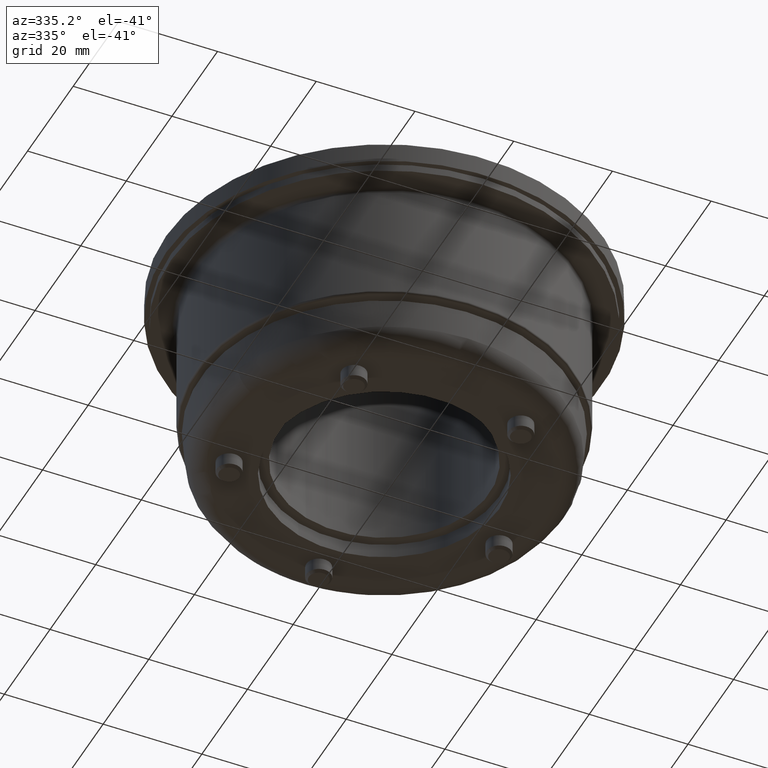
[diagram: clean part render]
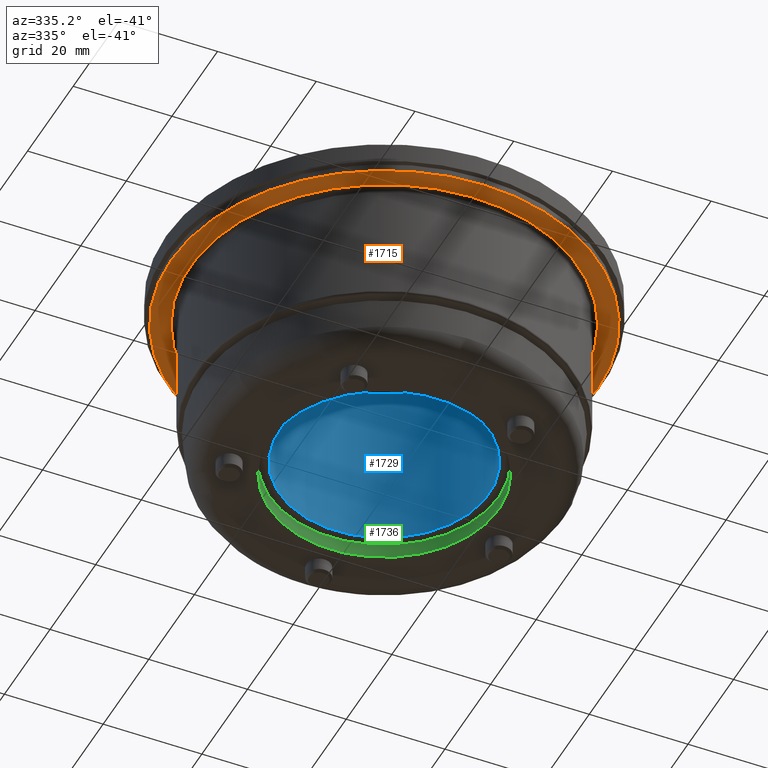
[diagram: same view with three faces highlighted in distinct colors, each labeled with its STEP entity id]
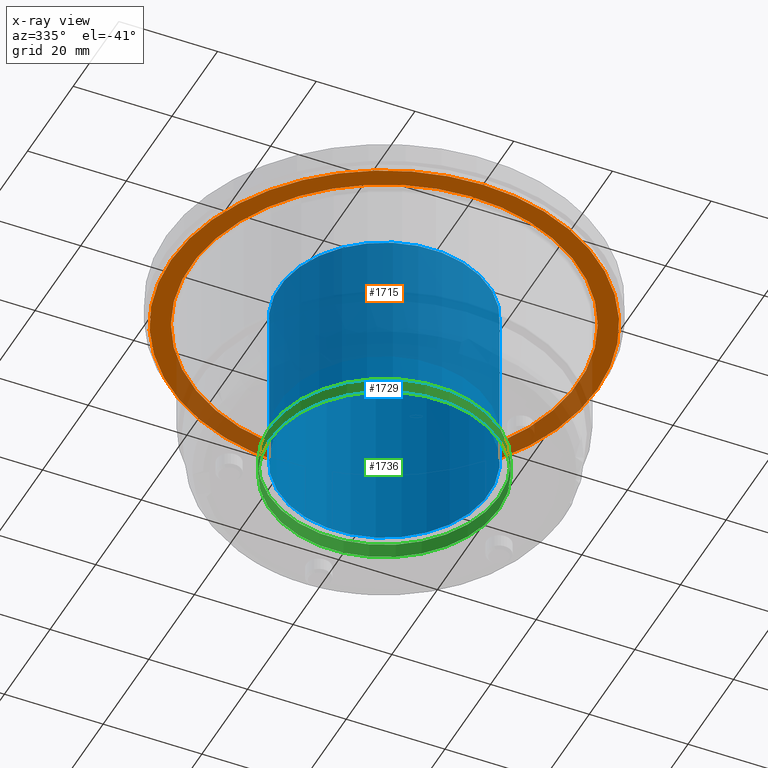
[diagram: x-ray of the same camera — body ghosted, the three highlighted faces saturated]
A machine part, auxiliary view with three faces highlighted in distinct colors.
The next image is the same camera in x-ray (body ghosted, the three faces saturated) — at least one of them is partly hidden behind the body in this view.
Their STEP definitions:

[orange] entity #1715 — the highlighted planar face has unit normal (-0, -0, -1).
#272=FACE_BOUND('',#465,.T.);
#327=PLANE('',#1990);
#374=FACE_OUTER_BOUND('',#464,.T.);
#464=EDGE_LOOP('',(#1343));
#465=EDGE_LOOP('',(#1344));
#650=CIRCLE('',#1988,39.25);
#652=CIRCLE('',#1991,43.2);
#820=VERTEX_POINT('',#2976);
#821=VERTEX_POINT('',#2980);
#1022=EDGE_CURVE('',#820,#820,#650,.T.);
#1024=EDGE_CURVE('',#821,#821,#652,.T.);
#1343=ORIENTED_EDGE('',*,*,#1024,.F.);
#1344=ORIENTED_EDGE('',*,*,#1022,.F.);
#1715=ADVANCED_FACE('',(#374,#272),#327,.T.);
#1988=AXIS2_PLACEMENT_3D('',#2977,#2384,#2385);
#1990=AXIS2_PLACEMENT_3D('',#2979,#2388,#2389);
#1991=AXIS2_PLACEMENT_3D('',#2981,#2390,#2391);
#2384=DIRECTION('center_axis',(0.,1.83697019872103E-16,-1.));
#2385=DIRECTION('ref_axis',(-1.,4.80253646724453E-18,8.82211636859917E-34));
#2388=DIRECTION('center_axis',(0.,1.83697019872103E-16,-1.));
#2389=DIRECTION('ref_axis',(-1.,0.,0.));
#2390=DIRECTION('center_axis',(0.,-1.83697019872103E-16,1.));
#2391=DIRECTION('ref_axis',(0.,-1.,-1.83697019872103E-16));
#2976=CARTESIAN_POINT('',(39.25,-4.62382375055224E-15,33.5));
#2977=CARTESIAN_POINT('Origin',(-5.55111512312578E-16,3.71414492440474E-16,
33.5));
#2979=CARTESIAN_POINT('Origin',(0.,-39.7,33.5));
#2980=CARTESIAN_POINT('',(-5.29047417231657E-15,43.2,33.5));
#2981=CARTESIAN_POINT('Origin',(0.,-6.15385016571545E-15,33.5));

[blue] entity #1729 — the highlighted cylindrical surface (bore or boss wall) has radius 21.25 mm, axis along (-0, 0, 1).
#114=LINE('',#3032,#185);
#185=VECTOR('',#2456,21.25);
#245=CYLINDRICAL_SURFACE('',#2020,21.25);
#388=FACE_OUTER_BOUND('',#485,.T.);
#485=EDGE_LOOP('',(#1389,#1390,#1391,#1392));
#656=CIRCLE('',#1997,21.25);
#668=CIRCLE('',#2021,21.25);
#824=VERTEX_POINT('',#2989);
#836=VERTEX_POINT('',#3031);
#1028=EDGE_CURVE('',#824,#824,#656,.T.);
#1046=EDGE_CURVE('',#824,#836,#114,.T.);
#1047=EDGE_CURVE('',#836,#836,#668,.T.);
#1389=ORIENTED_EDGE('',*,*,#1028,.F.);
#1390=ORIENTED_EDGE('',*,*,#1046,.T.);
#1391=ORIENTED_EDGE('',*,*,#1047,.F.);
#1392=ORIENTED_EDGE('',*,*,#1046,.F.);
#1729=ADVANCED_FACE('',(#388),#245,.F.);
#1997=AXIS2_PLACEMENT_3D('',#2990,#2402,#2403);
#2020=AXIS2_PLACEMENT_3D('',#3030,#2454,#2455);
#2021=AXIS2_PLACEMENT_3D('',#3033,#2457,#2458);
#2402=DIRECTION('center_axis',(0.,0.,1.));
#2403=DIRECTION('ref_axis',(-1.,0.,0.));
#2454=DIRECTION('center_axis',(0.,0.,1.));
#2455=DIRECTION('ref_axis',(-1.,0.,0.));
#2456=DIRECTION('',(0.,0.,1.));
#2457=DIRECTION('center_axis',(0.,0.,-1.));
#2458=DIRECTION('ref_axis',(-1.,0.,0.));
#2989=CARTESIAN_POINT('',(21.25,3.1574859605007E-15,0.));
#2990=CARTESIAN_POINT('Origin',(-5.55111512312578E-16,5.55111512312578E-16,
0.));
#3030=CARTESIAN_POINT('Origin',(-5.55111512312578E-16,5.55111512312578E-16,
0.));
#3031=CARTESIAN_POINT('',(21.25,3.1574859605007E-15,35.));
#3032=CARTESIAN_POINT('',(21.25,3.1574859605007E-15,0.));
#3033=CARTESIAN_POINT('Origin',(-5.55111512312578E-16,5.55111512312578E-16,
35.));

[green] entity #1736 — the highlighted cylindrical surface (bore or boss wall) has radius 23.25 mm, axis along (-0, 0, 1).
#120=LINE('',#3060,#191);
#191=VECTOR('',#2492,23.25);
#251=CYLINDRICAL_SURFACE('',#2034,23.25);
#395=FACE_OUTER_BOUND('',#503,.T.);
#503=EDGE_LOOP('',(#1435,#1436,#1437,#1438));
#674=CIRCLE('',#2035,23.25);
#675=CIRCLE('',#2036,23.25);
#842=VERTEX_POINT('',#3057);
#843=VERTEX_POINT('',#3059);
#1058=EDGE_CURVE('',#842,#842,#674,.T.);
#1059=EDGE_CURVE('',#842,#843,#120,.T.);
#1060=EDGE_CURVE('',#843,#843,#675,.T.);
#1435=ORIENTED_EDGE('',*,*,#1058,.F.);
#1436=ORIENTED_EDGE('',*,*,#1059,.T.);
#1437=ORIENTED_EDGE('',*,*,#1060,.T.);
#1438=ORIENTED_EDGE('',*,*,#1059,.F.);
#1736=ADVANCED_FACE('',(#395),#251,.F.);
#2034=AXIS2_PLACEMENT_3D('',#3056,#2488,#2489);
#2035=AXIS2_PLACEMENT_3D('',#3058,#2490,#2491);
#2036=AXIS2_PLACEMENT_3D('',#3061,#2493,#2494);
#2488=DIRECTION('center_axis',(-2.46716227694473E-16,1.,0.));
#2489=DIRECTION('ref_axis',(-1.,-2.46716227694473E-16,0.));
#2490=DIRECTION('center_axis',(-2.78911862918783E-16,1.,0.));
#2491=DIRECTION('ref_axis',(-1.,-2.46716227694473E-16,0.));
#2492=DIRECTION('',(-2.46716227694473E-16,1.,0.));
#2493=DIRECTION('center_axis',(-2.78911862918783E-16,1.,0.));
#2494=DIRECTION('ref_axis',(-1.,-2.46716227694473E-16,0.));
#3056=CARTESIAN_POINT('Origin',(-17.5,-2.99999999999999,0.));
#3057=CARTESIAN_POINT('',(5.75,-2.99999999999999,2.8473038080176E-15));
#3058=CARTESIAN_POINT('Origin',(-17.5,-2.99999999999999,0.));
#3059=CARTESIAN_POINT('',(5.75,1.35077134662726E-14,-2.8473038080176E-15));
#3060=CARTESIAN_POINT('',(5.75,-2.99999999999999,-2.8473038080176E-15));
#3061=CARTESIAN_POINT('Origin',(-17.5,7.7715611723761E-15,0.));